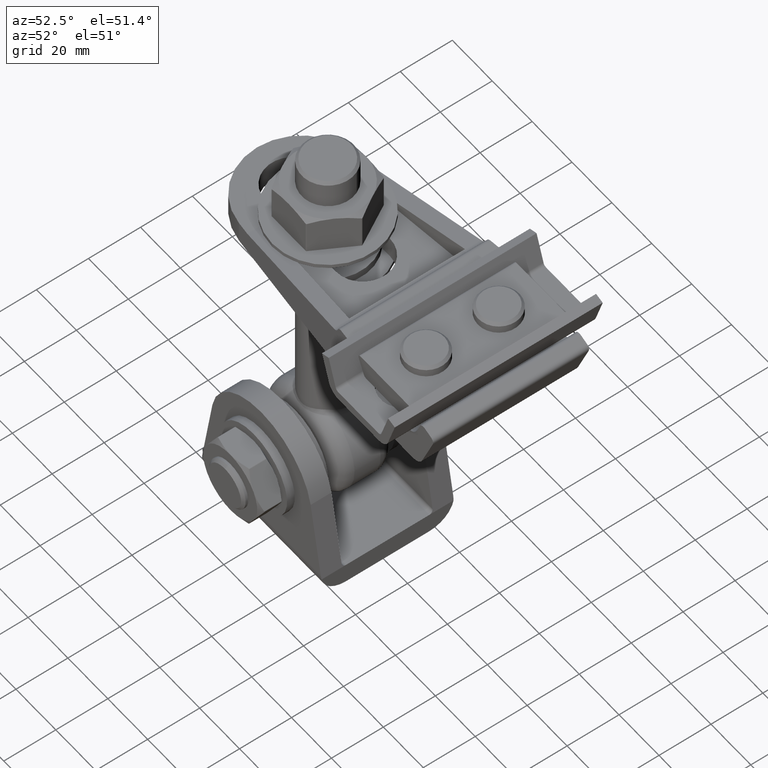
[diagram: clean part render]
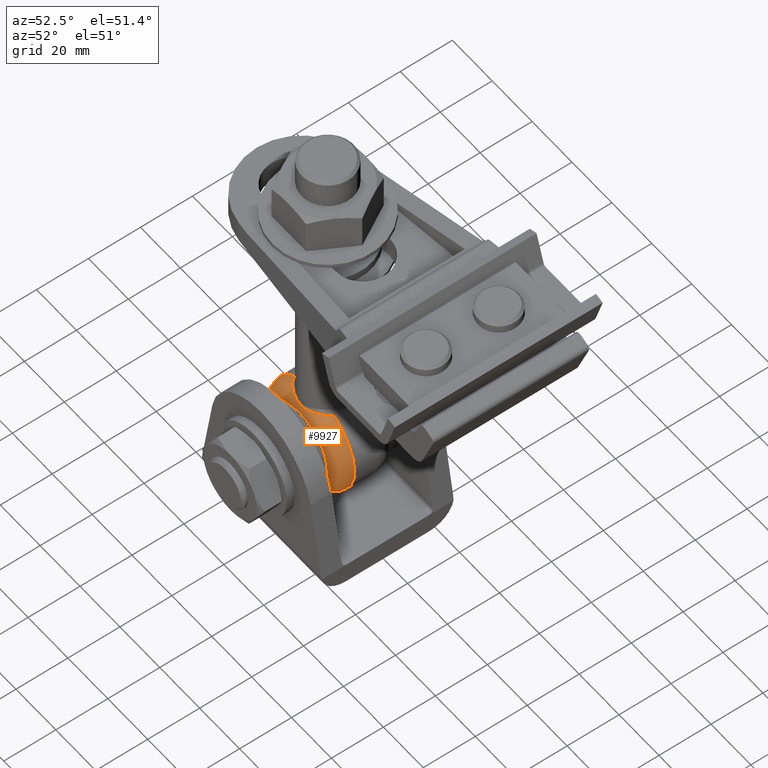
[diagram: same view with one face highlighted and labeled with its STEP entity id]
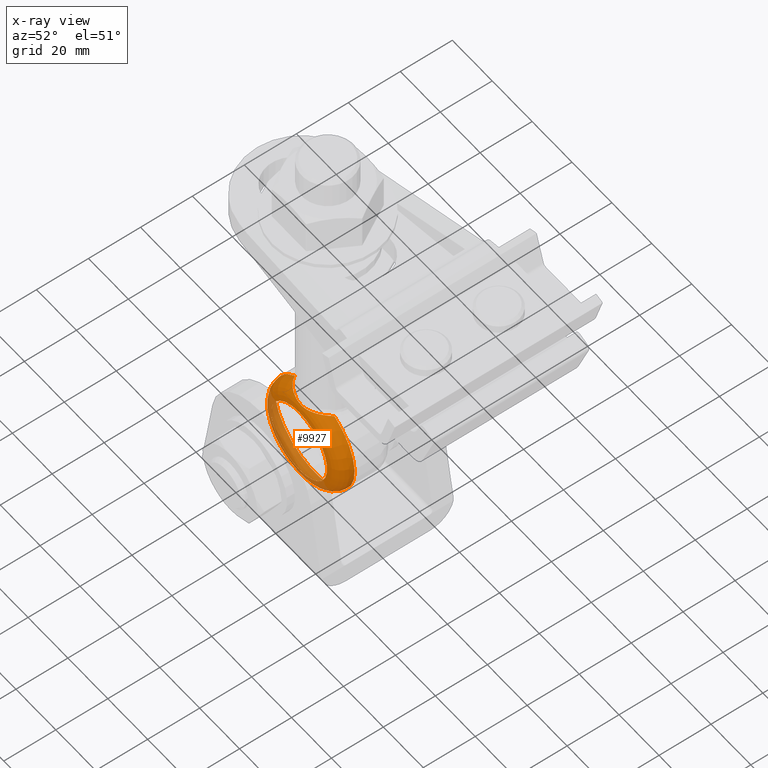
[diagram: x-ray of the same camera — body ghosted, the highlighted face saturated]
A machine part, auxiliary view. The second image highlights one B-rep face of the part: STEP entity #9927.
The next image is the same camera in x-ray: the body ghosted, the highlighted face saturated — about 30% of this face is hidden behind the body in this view.
In plain terms, the highlighted toroidal blend (fillet) surface has major radius 14 mm and minor (blend) radius 6 mm.
Its self-contained STEP definition (entity closure, byte-faithful):
#631 = CARTESIAN_POINT ( 'NONE',  ( -9.917011013305195632, -4.999999999999997335, 17.36815743140255464 ) ) ;
#1073 = CARTESIAN_POINT ( 'NONE',  ( 9.917011013305197409, -4.999999999999997335, 17.36815743140255108 ) ) ;
#1289 = DIRECTION ( 'NONE',  ( -0.000000000000000000, 1.000000000000000000, -0.000000000000000000 ) ) ;
#1393 = EDGE_CURVE ( 'NONE', #15737, #16967, #5818, .T. ) ;
#1413 = CARTESIAN_POINT ( 'NONE',  ( -1.836970198721029983E-15, -11.00000000000000000, 0.000000000000000000 ) ) ;
#1465 = CARTESIAN_POINT ( 'NONE',  ( 8.808957884540678407, -6.586380830953711296, 17.72161809347459638 ) ) ;
#1601 = CARTESIAN_POINT ( 'NONE',  ( -3.875144063292142338, -9.705927008750911966, 17.30689217036436034 ) ) ;
#1670 = CARTESIAN_POINT ( 'NONE',  ( -2.444736705867026405, -10.04579073197596806, 17.08377205481120242 ) ) ;
#1744 = CARTESIAN_POINT ( 'NONE',  ( -7.754481752277437856, -7.639133076385101084, 17.78685292519159233 ) ) ;
#2912 = CARTESIAN_POINT ( 'NONE',  ( -1.734723475976807094E-15, -4.999999999999999112, 0.000000000000000000 ) ) ;
#3157 = CARTESIAN_POINT ( 'NONE',  ( -5.250033648020418831, -9.197473032777672586, 17.53245047250502608 ) ) ;
#3337 = AXIS2_PLACEMENT_3D ( 'NONE', #2912, #1289, #9552 ) ;
#3363 = CARTESIAN_POINT ( 'NONE',  ( -9.683251416479006224, -5.420752664058683834, 17.50163137677338909 ) ) ;
#3702 = CARTESIAN_POINT ( 'NONE',  ( -1.836970198721029983E-15, -11.00000000000000000, 14.00000000000000888 ) ) ;
#4328 = CIRCLE ( 'NONE', #13733, 14.00000000000000888 ) ;
#4549 = AXIS2_PLACEMENT_3D ( 'NONE', #19530, #9388, #14335 ) ;
#4843 = CARTESIAN_POINT ( 'NONE',  ( -6.556840577500586242, -8.507673110919267145, 17.70781090082909870 ) ) ;
#4917 = CARTESIAN_POINT ( 'NONE',  ( 8.301126547795112387, -7.127471530739805772, 17.77064962797125958 ) ) ;
#4938 = DIRECTION ( 'NONE',  ( -0.000000000000000000, 1.000000000000000000, -0.000000000000000000 ) ) ;
#5430 = ORIENTED_EDGE ( 'NONE', *, *, #1393, .F. ) ;
#5544 = FACE_OUTER_BOUND ( 'NONE', #21532, .T. ) ;
#5657 = EDGE_LOOP ( 'NONE', ( #5430, #5751 ) ) ;
#5751 = ORIENTED_EDGE ( 'NONE', *, *, #11692, .T. ) ;
#5818 = CIRCLE ( 'NONE', #4549, 20.00000000000000711 ) ;
#6553 = CARTESIAN_POINT ( 'NONE',  ( -7.369818351472187778, -7.947445129398079899, 17.77274804372525452 ) ) ;
#6621 = CARTESIAN_POINT ( 'NONE',  ( 0.9963467213618879548, -10.22385397570031351, 16.93081986097583780 ) ) ;
#6693 = CARTESIAN_POINT ( 'NONE',  ( 6.135276776345253147, -8.755251819009272296, 17.65752580347581002 ) ) ;
#6839 = CARTESIAN_POINT ( 'NONE',  ( -8.472711208633761260, -6.953958932273220483, 17.75918833432926647 ) ) ;
#8250 = CARTESIAN_POINT ( 'NONE',  ( 8.966885058164152156, -6.399512865771991521, 17.69617135651177264 ) ) ;
#8320 = CARTESIAN_POINT ( 'NONE',  ( -6.127229826576911620, -8.759620560303272185, 17.65647573643923351 ) ) ;
#8535 = CARTESIAN_POINT ( 'NONE',  ( -9.416212816848407385, -5.824270557944817739, 17.59738574923966326 ) ) ;
#9388 = DIRECTION ( 'NONE',  ( -0.000000000000000000, 1.000000000000000000, -0.000000000000000000 ) ) ;
#9552 = DIRECTION ( 'NONE',  ( 0.000000000000000000, 0.000000000000000000, 1.000000000000000000 ) ) ;
#9785 = TOROIDAL_SURFACE ( 'NONE', #3337, 14.00000000000000711, 5.999999999999999112 ) ;
#9927 = ADVANCED_FACE ( 'NONE', ( #5544, #14289 ), #9785, .T. ) ;
#10020 = CARTESIAN_POINT ( 'NONE',  ( 7.756504574601449598, -7.637576105738714816, 17.78695934484787244 ) ) ;
#10090 = CARTESIAN_POINT ( 'NONE',  ( -8.296870848294549461, -7.131623885886598124, 17.77085936037283176 ) ) ;
#10236 = CARTESIAN_POINT ( 'NONE',  ( -9.917011013305195632, -4.999999999999997335, 17.36815743140255464 ) ) ;
#11526 = ORIENTED_EDGE ( 'NONE', *, *, #16423, .T. ) ;
#11692 = EDGE_CURVE ( 'NONE', #15737, #16967, #15725, .T. ) ;
#11725 = CARTESIAN_POINT ( 'NONE',  ( -0.4822752122880408221, -10.25039499745172655, 16.90435804446007850 ) ) ;
#11801 = CARTESIAN_POINT ( 'NONE',  ( 9.416133074542226922, -5.824253637699753128, 17.59733114662094167 ) ) ;
#11874 = CARTESIAN_POINT ( 'NONE',  ( 9.682999844045719229, -5.421205478715052095, 17.50177502163620247 ) ) ;
#12162 = VERTEX_POINT ( 'NONE', #3702 ) ;
#13285 = CARTESIAN_POINT ( 'NONE',  ( 2.461025526176594092, -10.04290980810552547, 17.08601713382127940 ) ) ;
#13495 = CARTESIAN_POINT ( 'NONE',  ( 1.972804237916113257, -10.12085411700733317, 17.02129463747706595 ) ) ;
#13733 = AXIS2_PLACEMENT_3D ( 'NONE', #1413, #4938, #18272 ) ;
#14289 = FACE_OUTER_BOUND ( 'NONE', #5657, .T. ) ;
#14335 = DIRECTION ( 'NONE',  ( 0.000000000000000000, 0.000000000000000000, 1.000000000000000000 ) ) ;
#14967 = CARTESIAN_POINT ( 'NONE',  ( 3.896361855794079787, -9.728758860974380696, 17.30195922480634962 ) ) ;
#15039 = CARTESIAN_POINT ( 'NONE',  ( 7.371850611343601756, -7.945767149414324493, 17.77280328773295182 ) ) ;
#15259 = CARTESIAN_POINT ( 'NONE',  ( 9.917011013305197409, -4.999999999999997335, 17.36815743140255108 ) ) ;
#15725 = B_SPLINE_CURVE_WITH_KNOTS ( 'NONE', 3,
 ( #15259, #11874, #11801, #8250, #1465, #18466, #4917, #10020, #15039, #16752, #6693, #20236, #14967, #13285, #13495, #6621, #18605, #11725, #16971, #21939, #1670, #18678, #1601, #16682, #3157, #8320, #4843, #6553, #1744, #10090, #6839, #18388, #20098, #8535, #3363, #10236 ),
 .UNSPECIFIED., .F., .F.,
 ( 4, 2, 2, 2, 2, 2, 2, 2, 2, 2, 2, 2, 2, 2, 2, 2, 2, 4 ),
 ( 0.000000000000000000, 0.001472966415233664542, 0.002209449622850494319, 0.002945932830467324313, 0.004418899245700985169, 0.005891865660934646025, 0.008837798491401965134, 0.01031076490663562599, 0.01178373132186928511, 0.01325669773710294423, 0.01472966415233660162, 0.01620263056757026074, 0.01767559698280391986, 0.01914856339803757898, 0.02062152981327124157, 0.02135801302088807460, 0.02209449622850490416, 0.02356746264373856328 ),
 .UNSPECIFIED. ) ;
#15737 = VERTEX_POINT ( 'NONE', #1073 ) ;
#16423 = EDGE_CURVE ( 'NONE', #12162, #12162, #4328, .T. ) ;
#16682 = CARTESIAN_POINT ( 'NONE',  ( -4.799575313314176306, -9.385594735185433635, 17.45946809565240088 ) ) ;
#16752 = CARTESIAN_POINT ( 'NONE',  ( 6.562592687822673021, -8.503984177162637437, 17.70837641382288297 ) ) ;
#16967 = VERTEX_POINT ( 'NONE', #631 ) ;
#16971 = CARTESIAN_POINT ( 'NONE',  ( -0.9814619777900208675, -10.22494427960923424, 16.92979140910094671 ) ) ;
#18272 = DIRECTION ( 'NONE',  ( 0.000000000000000000, 0.000000000000000000, 1.000000000000000000 ) ) ;
#18388 = CARTESIAN_POINT ( 'NONE',  ( -8.806947057485439601, -6.588745176479362087, 17.72193396467095639 ) ) ;
#18466 = CARTESIAN_POINT ( 'NONE',  ( 8.476540430161863426, -6.949939047073880438, 17.75885166884098609 ) ) ;
#18605 = CARTESIAN_POINT ( 'NONE',  ( 0.5054431279314487435, -10.24959562754523112, 16.90512598123165944 ) ) ;
#18678 = CARTESIAN_POINT ( 'NONE',  ( -3.400499814699806667, -9.837948280436711102, 17.22715983262599693 ) ) ;
#19530 = CARTESIAN_POINT ( 'NONE',  ( -1.836970198721029983E-15, -4.999999999999997335, 0.000000000000000000 ) ) ;
#20098 = CARTESIAN_POINT ( 'NONE',  ( -8.965542352611333143, -6.401172418338096470, 17.69643053847157077 ) ) ;
#20236 = CARTESIAN_POINT ( 'NONE',  ( 4.813945007827809874, -9.415843507615214492, 17.47096616467292307 ) ) ;
#21532 = EDGE_LOOP ( 'NONE', ( #11526 ) ) ;
#21939 = CARTESIAN_POINT ( 'NONE',  ( -1.961352874860693873, -10.12252910398017569, 17.01989218227353362 ) ) ;